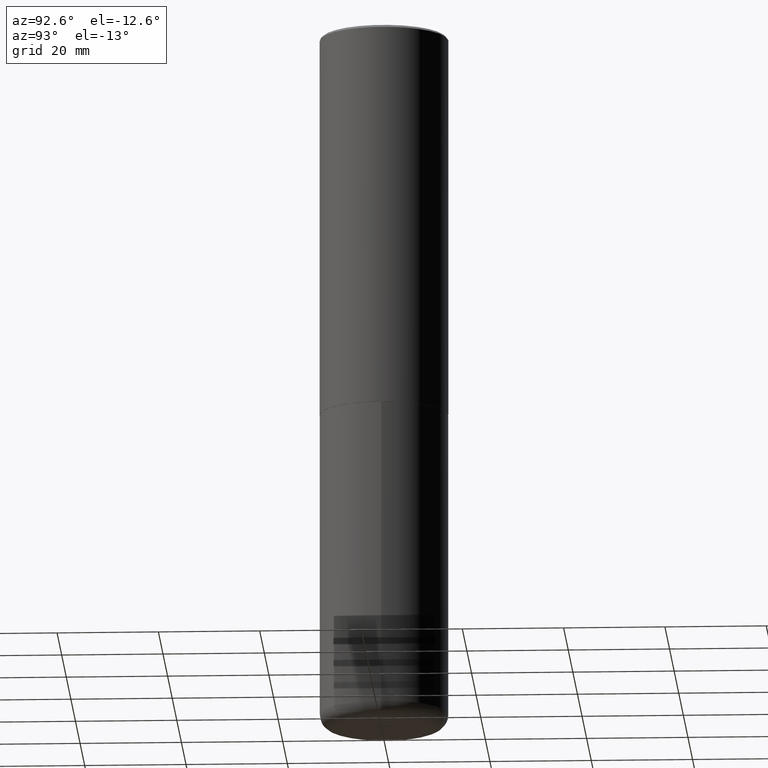
[diagram: clean part render]
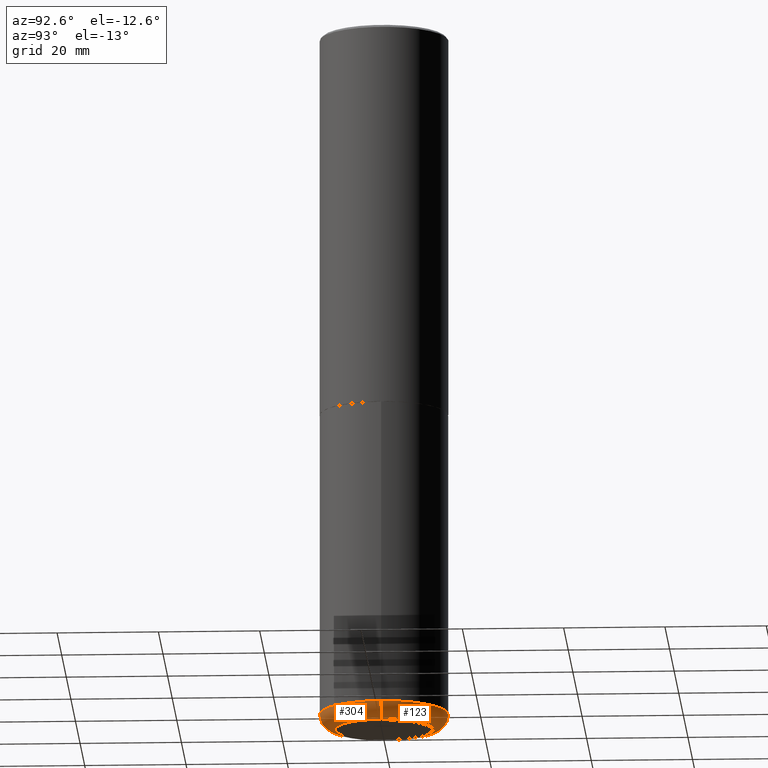
[diagram: same view with one multi-face feature highlighted, each face labeled with its STEP entity id]
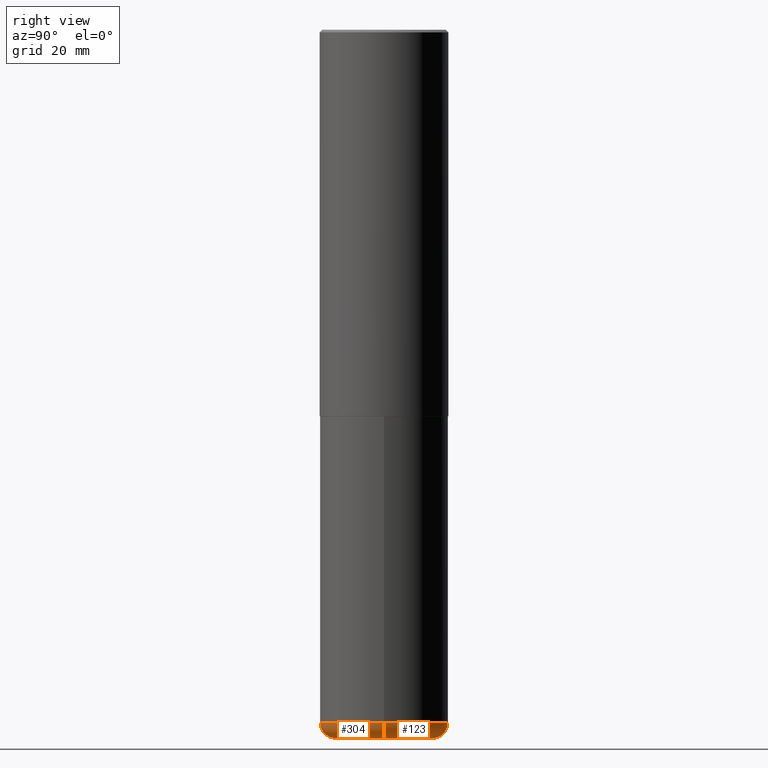
[diagram: same view with one multi-face feature highlighted, each face labeled with its STEP entity id]
A machine part, auxiliary view. The highlighted faces form ONE feature: a constant-radius fillet chain: 2 tangent blend faces with common blend radius 3.048 mm. The faces share edges in the B-rep.
A second angle (right view) of the same feature is appended — it is thin or edge-on in the first view.
Their STEP definitions:
[1] entity #123 (Torus):
#7 = AXIS2_PLACEMENT_3D ( 'NONE', #138, #199, #298 ) ;
#13 = DIRECTION ( 'NONE',  ( -1.000000000000000000, 7.105427357601009747E-15, 0.000000000000000000 ) ) ;
#16 = EDGE_CURVE ( 'NONE', #251, #329, #262, .T. ) ;
#38 = DIRECTION ( 'NONE',  ( -2.445468806185136597E-29, 3.491481338843145583E-15, 1.000000000000000000 ) ) ;
#50 = ORIENTED_EDGE ( 'NONE', *, *, #156, .T. ) ;
#52 = ORIENTED_EDGE ( 'NONE', *, *, #136, .F. ) ;
#64 = CARTESIAN_POINT ( 'NONE',  ( 1.315662217727603498E-28, -1.878416960297612308E-14, -5.379999999999999893 ) ) ;
#67 = DIRECTION ( 'NONE',  ( 1.000000000000000000, -6.982962677686269077E-15, 0.000000000000000000 ) ) ;
#72 = CIRCLE ( 'NONE', #230, 0.1199999999999999539 ) ;
#73 = AXIS2_PLACEMENT_3D ( 'NONE', #200, #234, #67 ) ;
#84 = CARTESIAN_POINT ( 'NONE',  ( 0.3799999999999999489, -2.185667318115807981E-14, -5.500000000000000000 ) ) ;
#100 = FACE_OUTER_BOUND ( 'NONE', #282, .T. ) ;
#108 = VERTEX_POINT ( 'NONE', #377 ) ;
#109 = CARTESIAN_POINT ( 'NONE',  ( 0.5000000000000000000, -2.227565094181925644E-14, -5.379999999999999893 ) ) ;
#116 = CIRCLE ( 'NONE', #162, 0.3799999999999999489 ) ;
#123 = ADVANCED_FACE ( 'NONE', ( #100 ), #362, .T. ) ;
#136 = EDGE_CURVE ( 'NONE', #313, #251, #400, .T. ) ;
#138 = CARTESIAN_POINT ( 'NONE',  ( 0.3799999999999999489, -2.143769542049690317E-14, -5.379999999999999893 ) ) ;
#139 = AXIS2_PLACEMENT_3D ( 'NONE', #64, #38, #172 ) ;
#143 = EDGE_CURVE ( 'NONE', #313, #108, #116, .T. ) ;
#149 = CARTESIAN_POINT ( 'NONE',  ( -0.3799999999999999489, -1.608410720708774314E-14, -5.379999999999999893 ) ) ;
#156 = EDGE_CURVE ( 'NONE', #108, #329, #72, .T. ) ;
#162 = AXIS2_PLACEMENT_3D ( 'NONE', #267, #382, #385 ) ;
#172 = DIRECTION ( 'NONE',  ( 1.000000000000000000, -6.982962677686264344E-15, 4.883557194083112340E-29 ) ) ;
#199 = DIRECTION ( 'NONE',  ( -6.982962677686266711E-15, -1.000000000000000000, 3.491481338843145583E-15 ) ) ;
#200 = CARTESIAN_POINT ( 'NONE',  ( 1.315662217727603498E-28, -1.878416960297612308E-14, -5.379999999999999893 ) ) ;
#205 = ORIENTED_EDGE ( 'NONE', *, *, #16, .F. ) ;
#230 = AXIS2_PLACEMENT_3D ( 'NONE', #149, #396, #13 ) ;
#234 = DIRECTION ( 'NONE',  ( -2.445468806185136597E-29, 3.491481338843145583E-15, 1.000000000000000000 ) ) ;
#251 = VERTEX_POINT ( 'NONE', #109 ) ;
#262 = CIRCLE ( 'NONE', #73, 0.5000000000000001110 ) ;
#267 = CARTESIAN_POINT ( 'NONE',  ( 1.345007843401824904E-28, -1.920314736363729972E-14, -5.500000000000000000 ) ) ;
#282 = EDGE_LOOP ( 'NONE', ( #307, #50, #205, #52 ) ) ;
#298 = DIRECTION ( 'NONE',  ( 1.000000000000000000, -6.982962677686270655E-15, 0.000000000000000000 ) ) ;
#307 = ORIENTED_EDGE ( 'NONE', *, *, #143, .T. ) ;
#313 = VERTEX_POINT ( 'NONE', #84 ) ;
#329 = VERTEX_POINT ( 'NONE', #336 ) ;
#336 = CARTESIAN_POINT ( 'NONE',  ( -0.5000000000000000000, -1.523145592417562216E-14, -5.379999999999999893 ) ) ;
#362 = TOROIDAL_SURFACE ( 'NONE', #139, 0.3799999999999999489, 0.1199999999999999539 ) ;
#377 = CARTESIAN_POINT ( 'NONE',  ( -0.3799999999999999489, -1.586727044596227254E-14, -5.500000000000000000 ) ) ;
#382 = DIRECTION ( 'NONE',  ( -2.445468806185136597E-29, 3.491481338843145583E-15, 1.000000000000000000 ) ) ;
#385 = DIRECTION ( 'NONE',  ( 1.000000000000000000, -6.982962677686261977E-15, 0.000000000000000000 ) ) ;
#396 = DIRECTION ( 'NONE',  ( 7.105427357601001859E-15, 1.000000000000000000, -3.491481338843145583E-15 ) ) ;
#400 = CIRCLE ( 'NONE', #7, 0.1199999999999999539 ) ;
[2] entity #304 (Torus):
#1 = CIRCLE ( 'NONE', #392, 0.5000000000000001110 ) ;
#7 = AXIS2_PLACEMENT_3D ( 'NONE', #138, #199, #298 ) ;
#11 = ORIENTED_EDGE ( 'NONE', *, *, #156, .F. ) ;
#13 = DIRECTION ( 'NONE',  ( -1.000000000000000000, 7.105427357601009747E-15, 0.000000000000000000 ) ) ;
#33 = DIRECTION ( 'NONE',  ( -2.445468806185136597E-29, 3.491481338843145583E-15, 1.000000000000000000 ) ) ;
#72 = CIRCLE ( 'NONE', #230, 0.1199999999999999539 ) ;
#74 = FACE_OUTER_BOUND ( 'NONE', #222, .T. ) ;
#76 = DIRECTION ( 'NONE',  ( -2.445468806185136597E-29, 3.491481338843145583E-15, 1.000000000000000000 ) ) ;
#80 = AXIS2_PLACEMENT_3D ( 'NONE', #308, #76, #203 ) ;
#84 = CARTESIAN_POINT ( 'NONE',  ( 0.3799999999999999489, -2.185667318115807981E-14, -5.500000000000000000 ) ) ;
#108 = VERTEX_POINT ( 'NONE', #377 ) ;
#109 = CARTESIAN_POINT ( 'NONE',  ( 0.5000000000000000000, -2.227565094181925644E-14, -5.379999999999999893 ) ) ;
#118 = CIRCLE ( 'NONE', #276, 0.3799999999999999489 ) ;
#136 = EDGE_CURVE ( 'NONE', #313, #251, #400, .T. ) ;
#138 = CARTESIAN_POINT ( 'NONE',  ( 0.3799999999999999489, -2.143769542049690317E-14, -5.379999999999999893 ) ) ;
#149 = CARTESIAN_POINT ( 'NONE',  ( -0.3799999999999999489, -1.608410720708774314E-14, -5.379999999999999893 ) ) ;
#156 = EDGE_CURVE ( 'NONE', #108, #329, #72, .T. ) ;
#175 = CARTESIAN_POINT ( 'NONE',  ( 1.345007843401824904E-28, -1.920314736363729972E-14, -5.500000000000000000 ) ) ;
#199 = DIRECTION ( 'NONE',  ( -6.982962677686266711E-15, -1.000000000000000000, 3.491481338843145583E-15 ) ) ;
#203 = DIRECTION ( 'NONE',  ( 1.000000000000000000, -6.982962677686264344E-15, 4.883557194083112340E-29 ) ) ;
#218 = ORIENTED_EDGE ( 'NONE', *, *, #380, .T. ) ;
#222 = EDGE_LOOP ( 'NONE', ( #11, #218, #310, #346 ) ) ;
#224 = DIRECTION ( 'NONE',  ( 1.000000000000000000, -6.982962677686261977E-15, 0.000000000000000000 ) ) ;
#230 = AXIS2_PLACEMENT_3D ( 'NONE', #149, #396, #13 ) ;
#251 = VERTEX_POINT ( 'NONE', #109 ) ;
#276 = AXIS2_PLACEMENT_3D ( 'NONE', #175, #33, #224 ) ;
#298 = DIRECTION ( 'NONE',  ( 1.000000000000000000, -6.982962677686270655E-15, 0.000000000000000000 ) ) ;
#304 = ADVANCED_FACE ( 'NONE', ( #74 ), #359, .T. ) ;
#308 = CARTESIAN_POINT ( 'NONE',  ( 1.315662217727603498E-28, -1.878416960297612308E-14, -5.379999999999999893 ) ) ;
#310 = ORIENTED_EDGE ( 'NONE', *, *, #136, .T. ) ;
#313 = VERTEX_POINT ( 'NONE', #84 ) ;
#329 = VERTEX_POINT ( 'NONE', #336 ) ;
#331 = CARTESIAN_POINT ( 'NONE',  ( 1.315662217727603498E-28, -1.878416960297612308E-14, -5.379999999999999893 ) ) ;
#333 = DIRECTION ( 'NONE',  ( 1.000000000000000000, -6.982962677686269077E-15, 0.000000000000000000 ) ) ;
#336 = CARTESIAN_POINT ( 'NONE',  ( -0.5000000000000000000, -1.523145592417562216E-14, -5.379999999999999893 ) ) ;
#346 = ORIENTED_EDGE ( 'NONE', *, *, #351, .F. ) ;
#351 = EDGE_CURVE ( 'NONE', #329, #251, #1, .T. ) ;
#359 = TOROIDAL_SURFACE ( 'NONE', #80, 0.3799999999999999489, 0.1199999999999999539 ) ;
#377 = CARTESIAN_POINT ( 'NONE',  ( -0.3799999999999999489, -1.586727044596227254E-14, -5.500000000000000000 ) ) ;
#380 = EDGE_CURVE ( 'NONE', #108, #313, #118, .T. ) ;
#392 = AXIS2_PLACEMENT_3D ( 'NONE', #331, #394, #333 ) ;
#394 = DIRECTION ( 'NONE',  ( -2.445468806185136597E-29, 3.491481338843145583E-15, 1.000000000000000000 ) ) ;
#396 = DIRECTION ( 'NONE',  ( 7.105427357601001859E-15, 1.000000000000000000, -3.491481338843145583E-15 ) ) ;
#400 = CIRCLE ( 'NONE', #7, 0.1199999999999999539 ) ;